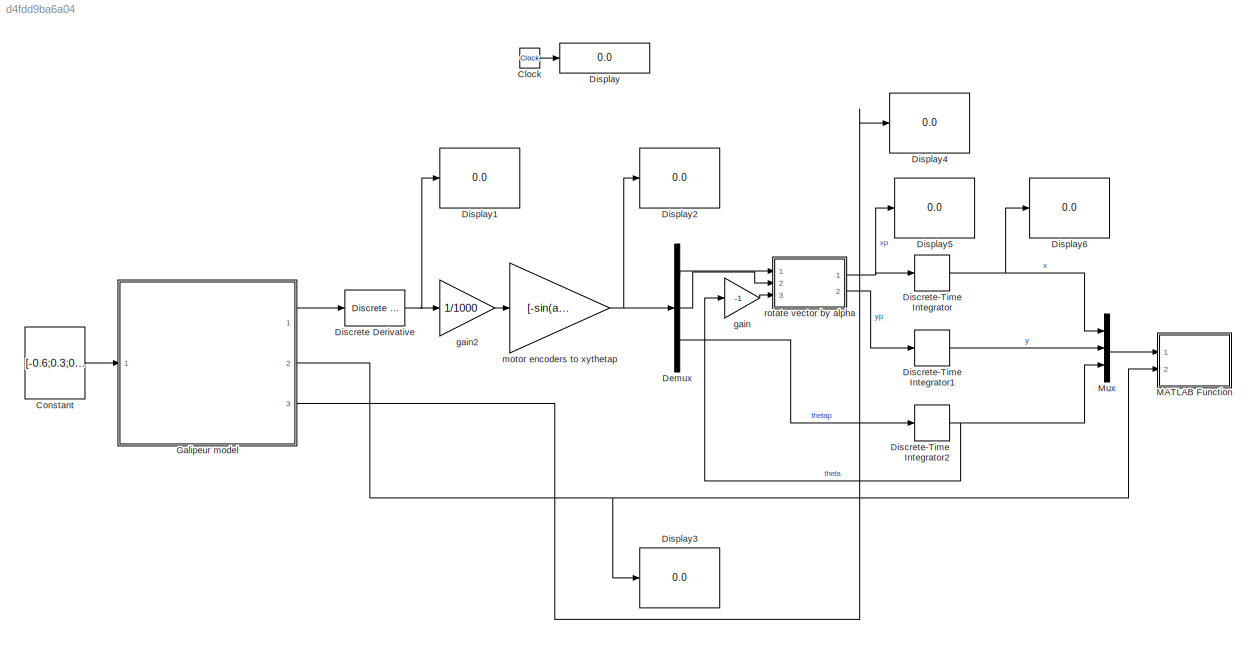
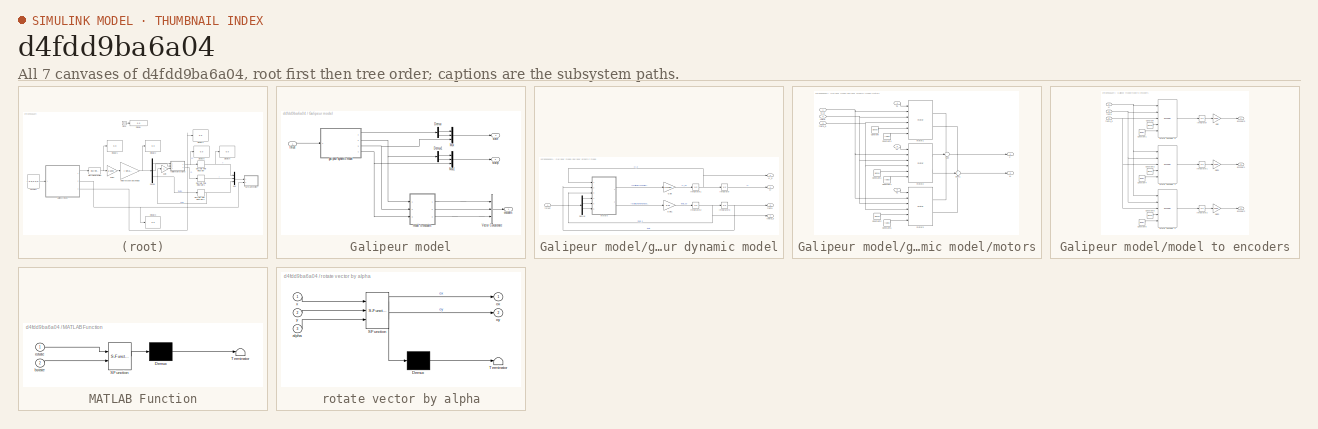
[diagram: thumbnail index - all 7 canvases of the model, root first then tree order]
MODEL slx_d4fdd9ba6a04
KIND model
CONFIG AbsTol = auto
CONFIG EnableMultiTasking = off
CONFIG FixedStep = 0.01
CONFIG MaxStep = 0.05
CONFIG MinStep = auto
CONFIG RelTol = 1e-3
CONFIG SampleTimeConstraint = Unconstrained
CONFIG Solver = FixedStepAuto
CONFIG SolverName = FixedStepAuto
CONFIG StartTime = 0.0
CONFIG StopTime = inf
WORKSPACE source: MAT-file member
WORKSPACE Jz = 3
BLOCK [Clock] Clock
BLOCK [Constant] Constant
  Value = [-0.6;0.3;0.3]
  VectorParams1D = off
BLOCK [Demux] Demux
  DisplayOption = bar
  Outputs = 3
  Ports = [1, 3]
BLOCK [Reference] Discrete Derivative  REF=simulink/Discrete/Discrete Derivative
  Ports = [1, 1]
  SourceBlock = simulink/Discrete/Discrete Derivative
  SourceProductBaseCode = SL
  SourceProductName = Simulink
  SourceType = Discrete Derivative
BLOCK [DiscreteIntegrator] Discrete-Time Integrator
  ICPrevOutput = DiscIntNeverNeededParam
  ICPrevScaledInput = DiscIntNeverNeededParam
  InitialConditionSetting = State (most efficient)
  Ports = [1, 1]
  SampleTime = -1
BLOCK [DiscreteIntegrator] Discrete-Time Integrator1
  ICPrevOutput = DiscIntNeverNeededParam
  ICPrevScaledInput = DiscIntNeverNeededParam
  InitialConditionSetting = State (most efficient)
  Ports = [1, 1]
  SampleTime = -1
BLOCK [DiscreteIntegrator] Discrete-Time Integrator2
  ICPrevOutput = DiscIntNeverNeededParam
  ICPrevScaledInput = DiscIntNeverNeededParam
  InitialConditionSetting = State (most efficient)
  Ports = [1, 1]
  SampleTime = -1
BLOCK [Display] Display
  Decimation = 1
  Ports = [1]
BLOCK [Display] Display1
  Decimation = 1
  Ports = [1]
BLOCK [Display] Display2
  Decimation = 1
  Ports = [1]
BLOCK [Display] Display3
  Decimation = 1
  Ports = [1]
BLOCK [Display] Display4
  Decimation = 1
  Ports = [1]
BLOCK [Display] Display5
  Decimation = 1
  Ports = [1]
BLOCK [Display] Display6
  Decimation = 1
  Ports = [1]
BLOCK [SubSystem] Galipeur model
  Ports = [1, 3]
  RequestExecContextInheritance = off
  Variant = off
BLOCK [Demux] Galipeur model/Demux
  DisplayOption = bar
  Outputs = 2
  Ports = [1, 2]
BLOCK [Demux] Galipeur model/Demux1
  DisplayOption = bar
  Outputs = 2
  Ports = [1, 2]
BLOCK [Mux] Galipeur model/Mux
  DisplayOption = bar
  Inputs = 3
  Ports = [3, 1]
BLOCK [Mux] Galipeur model/Mux1
  DisplayOption = bar
  Inputs = 3
  Ports = [3, 1]
BLOCK [Concatenate] Galipeur model/Vector Concatenate
  NumInputs = 3
  Ports = [3, 1]
BLOCK [Outport] Galipeur model/encoders
  IconDisplay = Port number
BLOCK [SubSystem] Galipeur model/galipeur dynamic model
  Ports = [1, 4]
  RequestExecContextInheritance = off
  Variant = off
BLOCK [Demux] Galipeur model/galipeur dynamic model/Demux
  DisplayOption = bar
  Outputs = 3
  Ports = [1, 3]
BLOCK [Gain] Galipeur model/galipeur dynamic model/Gain
  Gain = 1/mass
  OutDataTypeStr = Inherit: Inherit via internal rule
  ParamDataTypeStr = Inherit: Inherit via internal rule
  SaturateOnIntegerOverflow = off
BLOCK [Gain] Galipeur model/galipeur dynamic model/Gain1
  Gain = 1/Jz
  OutDataTypeStr = Inherit: Inherit via internal rule
  ParamDataTypeStr = Inherit: Inherit via internal rule
  SaturateOnIntegerOverflow = off
BLOCK [Integrator] Galipeur model/galipeur dynamic model/Integrator
  Ports = [1, 1]
BLOCK [Integrator] Galipeur model/galipeur dynamic model/Integrator1
  Ports = [1, 1]
BLOCK [Integrator] Galipeur model/galipeur dynamic model/Integrator2
  Ports = [1, 1]
BLOCK [Integrator] Galipeur model/galipeur dynamic model/Integrator3
  Ports = [1, 1]
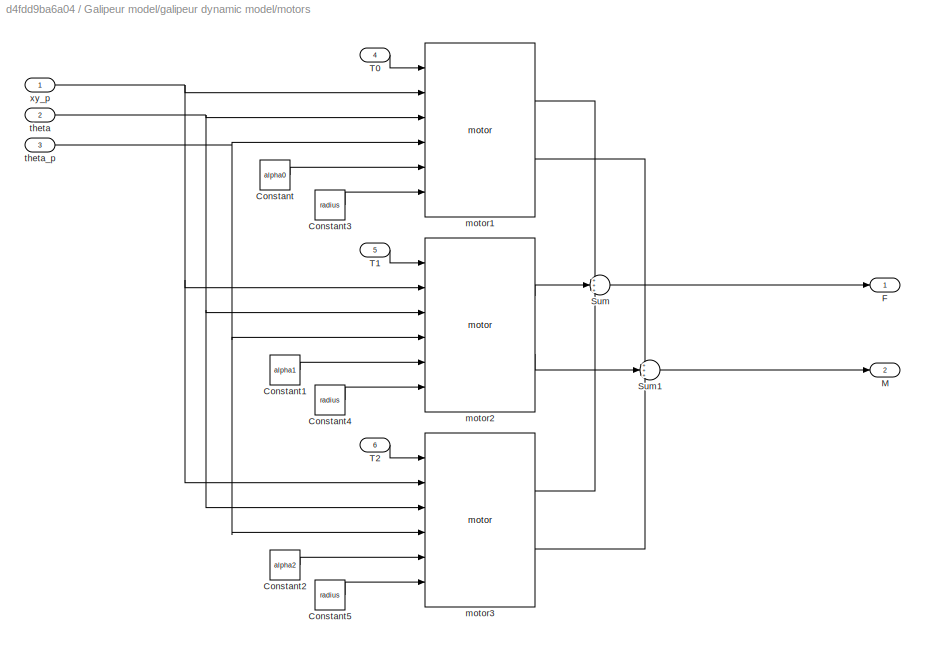
BLOCK [SubSystem] Galipeur model/galipeur dynamic model/motors
  Ports = [6, 2]
  RequestExecContextInheritance = off
  Variant = off
BLOCK [Constant] Galipeur model/galipeur dynamic model/motors/Constant
  Value = alpha0
BLOCK [Constant] Galipeur model/galipeur dynamic model/motors/Constant1
  Value = alpha1
BLOCK [Constant] Galipeur model/galipeur dynamic model/motors/Constant2
  Value = alpha2
BLOCK [Constant] Galipeur model/galipeur dynamic model/motors/Constant3
  Value = radius
BLOCK [Constant] Galipeur model/galipeur dynamic model/motors/Constant4
  Value = radius
BLOCK [Constant] Galipeur model/galipeur dynamic model/motors/Constant5
  Value = radius
BLOCK [Outport] Galipeur model/galipeur dynamic model/motors/F
  IconDisplay = Port number
BLOCK [Outport] Galipeur model/galipeur dynamic model/motors/M
  IconDisplay = Port number
  Port = 2
BLOCK [Sum] Galipeur model/galipeur dynamic model/motors/Sum
  IconShape = round
  InputSameDT = off
  Inputs = +++
  OutDataTypeStr = Inherit: Inherit via internal rule
  Ports = [3, 1]
  SaturateOnIntegerOverflow = off
BLOCK [Sum] Galipeur model/galipeur dynamic model/motors/Sum1
  IconShape = round
  InputSameDT = off
  Inputs = +++
  OutDataTypeStr = Inherit: Inherit via internal rule
  Ports = [3, 1]
  SaturateOnIntegerOverflow = off
BLOCK [Inport] Galipeur model/galipeur dynamic model/motors/T0
  IconDisplay = Port number
  Port = 4
BLOCK [Inport] Galipeur model/galipeur dynamic model/motors/T1
  IconDisplay = Port number
  Port = 5
BLOCK [Inport] Galipeur model/galipeur dynamic model/motors/T2
  IconDisplay = Port number
  Port = 6
BLOCK [Reference] Galipeur model/galipeur dynamic model/motors/motor1  REF=galipeur_lib/motor  (lib defined in slx_35d7a39ee497, slx_afde5d6e38f9)
  Ports = [6, 2]
  SourceBlock = galipeur_lib/motor
  SourceType = SubSystem
BLOCK [Reference] Galipeur model/galipeur dynamic model/motors/motor2  REF=galipeur_lib/motor  (lib defined in slx_35d7a39ee497, slx_afde5d6e38f9)
  Ports = [6, 2]
  SourceBlock = galipeur_lib/motor
  SourceType = SubSystem
BLOCK [Reference] Galipeur model/galipeur dynamic model/motors/motor3  REF=galipeur_lib/motor  (lib defined in slx_35d7a39ee497, slx_afde5d6e38f9)
  Ports = [6, 2]
  SourceBlock = galipeur_lib/motor
  SourceType = SubSystem
BLOCK [Inport] Galipeur model/galipeur dynamic model/motors/theta
  IconDisplay = Port number
  Port = 2
BLOCK [Inport] Galipeur model/galipeur dynamic model/motors/theta_p
  IconDisplay = Port number
  Port = 3
BLOCK [Inport] Galipeur model/galipeur dynamic model/motors/xy_p
  IconDisplay = Port number
BLOCK [Outport] Galipeur model/galipeur dynamic model/theta
  IconDisplay = Port number
  Port = 3
BLOCK [Outport] Galipeur model/galipeur dynamic model/theta_p
  IconDisplay = Port number
  Port = 4
BLOCK [Inport] Galipeur model/galipeur dynamic model/thrust
  IconDisplay = Port number
BLOCK [Outport] Galipeur model/galipeur dynamic model/xy 
  IconDisplay = Port number
BLOCK [Outport] Galipeur model/galipeur dynamic model/xy_p
  IconDisplay = Port number
  Port = 2
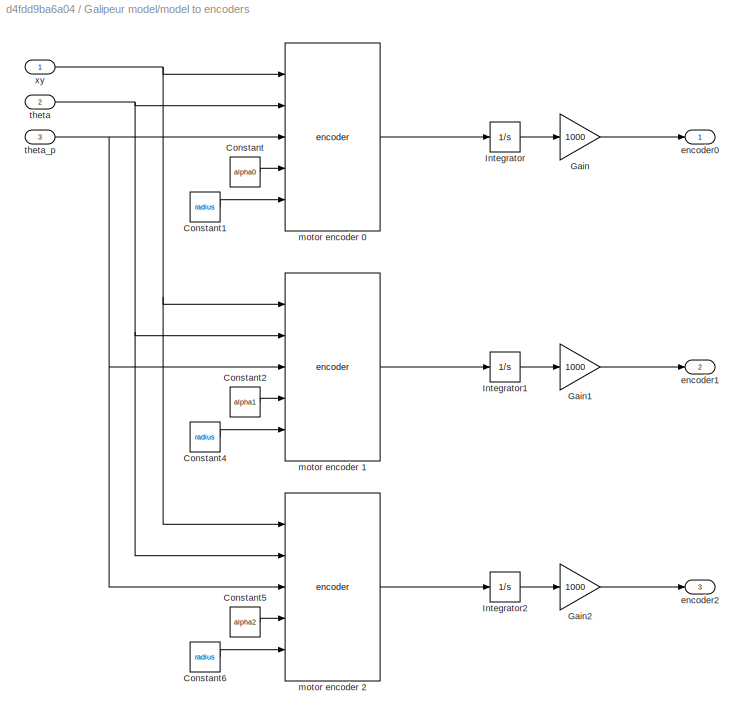
BLOCK [SubSystem] Galipeur model/model to encoders
  Ports = [3, 3]
  RequestExecContextInheritance = off
  Variant = off
BLOCK [Constant] Galipeur model/model to encoders/Constant
  Value = alpha0
BLOCK [Constant] Galipeur model/model to encoders/Constant1
  Value = radius
BLOCK [Constant] Galipeur model/model to encoders/Constant2
  Value = alpha1
BLOCK [Constant] Galipeur model/model to encoders/Constant4
  Value = radius
BLOCK [Constant] Galipeur model/model to encoders/Constant5
  Value = alpha2
BLOCK [Constant] Galipeur model/model to encoders/Constant6
  Value = radius
BLOCK [Gain] Galipeur model/model to encoders/Gain
  Gain = 1000
  OutDataTypeStr = Inherit: Inherit via internal rule
  ParamDataTypeStr = Inherit: Inherit via internal rule
  SaturateOnIntegerOverflow = off
BLOCK [Gain] Galipeur model/model to encoders/Gain1
  Gain = 1000
  OutDataTypeStr = Inherit: Inherit via internal rule
  ParamDataTypeStr = Inherit: Inherit via internal rule
  SaturateOnIntegerOverflow = off
BLOCK [Gain] Galipeur model/model to encoders/Gain2
  Gain = 1000
  OutDataTypeStr = Inherit: Inherit via internal rule
  ParamDataTypeStr = Inherit: Inherit via internal rule
  SaturateOnIntegerOverflow = off
BLOCK [Integrator] Galipeur model/model to encoders/Integrator
  Ports = [1, 1]
BLOCK [Integrator] Galipeur model/model to encoders/Integrator1
  Ports = [1, 1]
BLOCK [Integrator] Galipeur model/model to encoders/Integrator2
  Ports = [1, 1]
BLOCK [Outport] Galipeur model/model to encoders/encoder0
  IconDisplay = Port number
BLOCK [Outport] Galipeur model/model to encoders/encoder1
  IconDisplay = Port number
  Port = 2
BLOCK [Outport] Galipeur model/model to encoders/encoder2
  IconDisplay = Port number
  Port = 3
BLOCK [Reference] Galipeur model/model to encoders/motor encoder 0  REF=galipeur_lib/encoder  (lib defined in slx_35d7a39ee497, slx_afde5d6e38f9)
  Ports = [5, 1]
  SourceBlock = galipeur_lib/encoder
  SourceType = SubSystem
BLOCK [Reference] Galipeur model/model to encoders/motor encoder 1  REF=galipeur_lib/encoder  (lib defined in slx_35d7a39ee497, slx_afde5d6e38f9)
  Ports = [5, 1]
  SourceBlock = galipeur_lib/encoder
  SourceType = SubSystem
BLOCK [Reference] Galipeur model/model to encoders/motor encoder 2  REF=galipeur_lib/encoder  (lib defined in slx_35d7a39ee497, slx_afde5d6e38f9)
  Ports = [5, 1]
  SourceBlock = galipeur_lib/encoder
  SourceType = SubSystem
BLOCK [Inport] Galipeur model/model to encoders/theta
  IconDisplay = Port number
  Port = 2
BLOCK [Inport] Galipeur model/model to encoders/theta_p
  IconDisplay = Port number
  Port = 3
BLOCK [Inport] Galipeur model/model to encoders/xy
  IconDisplay = Port number
BLOCK [Outport] Galipeur model/state
  IconDisplay = Port number
  Port = 2
BLOCK [Outport] Galipeur model/statep
  IconDisplay = Port number
  Port = 3
BLOCK [Inport] Galipeur model/thrust
  IconDisplay = Port number
BLOCK [SubSystem] MATLAB Function
  ErrorFcn = Stateflow.Translate.translate
  PermitHierarchicalResolution = ExplicitOnly
  Ports = [2]
  RequestExecContextInheritance = off
  SFBlockType = MATLAB Function
  TreatAsAtomicUnit = on
  Variant = off
BLOCK [Demux] MATLAB Function/ Demux 
  Outputs = 1
  Ports = [1, 1]
BLOCK [S-Function] MATLAB Function/ SFunction 
  EnableBusSupport = on
  FunctionName = sf_sfun
  PortCounts = [2 1]
  Ports = [2, 1]
  SFcnIsStateOwnerBlock = off
  SFunctionDeploymentMode = off
  Tag = Stateflow S-Function galipeur 3
BLOCK [Terminator] MATLAB Function/ Terminator 
BLOCK [Inport] MATLAB Function/bstate
  IconDisplay = Port number
  Port = 2
BLOCK [Inport] MATLAB Function/rstate
  IconDisplay = Port number
BLOCK [Mux] Mux
  DisplayOption = bar
  Inputs = 3
  Ports = [3, 1]
BLOCK [Gain] gain
  Gain = -1
  OutDataTypeStr = Inherit: Inherit via internal rule
  ParamDataTypeStr = Inherit: Inherit via internal rule
  SaturateOnIntegerOverflow = off
BLOCK [Gain] gain2
  Gain = 1/1000
  OutDataTypeStr = Inherit: Inherit via internal rule
  ParamDataTypeStr = Inherit: Inherit via internal rule
  SaturateOnIntegerOverflow = off
BLOCK [Gain] motor encoders to xythetap
  Gain = [-sin(alpha0)/3 -sin(alpha1)/3 -sin(alpha2)/3; cos(alpha0)/3 cos(alpha1)/3 cos(alpha2)/3; 1/3*radius 1/3*radius 1/3*radius]
  Multiplication = Matrix(K*u) (u vector)
  OutDataTypeStr = Inherit: Inherit via internal rule
  ParamDataTypeStr = Inherit: Inherit via internal rule
  SaturateOnIntegerOverflow = off
BLOCK [SubSystem] rotate vector by alpha
  ErrorFcn = Stateflow.Translate.translate
  PermitHierarchicalResolution = ExplicitOnly
  Ports = [3, 2]
  RequestExecContextInheritance = off
  SFBlockType = MATLAB Function
  TreatAsAtomicUnit = on
  Variant = off
BLOCK [Demux] rotate vector by alpha/ Demux 
  Outputs = 1
  Ports = [1, 1]
BLOCK [S-Function] rotate vector by alpha/ SFunction 
  EnableBusSupport = on
  FunctionName = sf_sfun
  PortCounts = [3 3]
  Ports = [3, 3]
  SFcnIsStateOwnerBlock = off
  SFunctionDeploymentMode = off
  Tag = Stateflow S-Function galipeur 1
BLOCK [Terminator] rotate vector by alpha/ Terminator 
BLOCK [Inport] rotate vector by alpha/alpha
  IconDisplay = Port number
  Port = 3
BLOCK [Outport] rotate vector by alpha/ox
  IconDisplay = Port number
BLOCK [Outport] rotate vector by alpha/oy
  IconDisplay = Port number
  Port = 2
BLOCK [Inport] rotate vector by alpha/x
  IconDisplay = Port number
BLOCK [Inport] rotate vector by alpha/y
  IconDisplay = Port number
  Port = 2
LINE Clock:1 -> Display:1
LINE Constant:1 -> Galipeur model:1
LINE Demux:1 -> rotate vector by alpha:1
LINE Demux:2 -> rotate vector by alpha:2
LINE Demux:3 -> Discrete-Time Integrator2:1
NET Discrete Derivative:1 -> Display1:1, gain2:1
LINE Discrete-Time Integrator1:1 -> Mux:2
NET Discrete-Time Integrator2:1 -> Mux:3, gain:1
NET Discrete-Time Integrator:1 -> Display6:1, Mux:1
LINE Galipeur model/Demux1:1 -> Galipeur model/Mux1:1
LINE Galipeur model/Demux1:2 -> Galipeur model/Mux1:2
LINE Galipeur model/Demux:1 -> Galipeur model/Mux:1
LINE Galipeur model/Demux:2 -> Galipeur model/Mux:2
LINE Galipeur model/Mux1:1 -> Galipeur model/statep:1
LINE Galipeur model/Mux:1 -> Galipeur model/state:1
LINE Galipeur model/Vector Concatenate:1 -> Galipeur model/encoders:1
LINE Galipeur model/galipeur dynamic model/Demux:1 -> Galipeur model/galipeur dynamic model/motors:4
LINE Galipeur model/galipeur dynamic model/Demux:2 -> Galipeur model/galipeur dynamic model/motors:5
LINE Galipeur model/galipeur dynamic model/Demux:3 -> Galipeur model/galipeur dynamic model/motors:6
LINE Galipeur model/galipeur dynamic model/Gain1:1 -> Galipeur model/galipeur dynamic model/Integrator2:1
LINE Galipeur model/galipeur dynamic model/Gain:1 -> Galipeur model/galipeur dynamic model/Integrator1:1
NET Galipeur model/galipeur dynamic model/Integrator1:1 -> Galipeur model/galipeur dynamic model/Integrator:1, Galipeur model/galipeur dynamic model/motors:1, Galipeur model/galipeur dynamic model/xy_p:1
NET Galipeur model/galipeur dynamic model/Integrator2:1 -> Galipeur model/galipeur dynamic model/Integrator3:1, Galipeur model/galipeur dynamic model/motors:3, Galipeur model/galipeur dynamic model/theta_p:1
NET Galipeur model/galipeur dynamic model/Integrator3:1 -> Galipeur model/galipeur dynamic model/motors:2, Galipeur model/galipeur dynamic model/theta:1
LINE Galipeur model/galipeur dynamic model/Integrator:1 -> Galipeur model/galipeur dynamic model/xy :1
LINE Galipeur model/galipeur dynamic model/motors/Constant1:1 -> Galipeur model/galipeur dynamic model/motors/motor2:5
LINE Galipeur model/galipeur dynamic model/motors/Constant2:1 -> Galipeur model/galipeur dynamic model/motors/motor3:5
LINE Galipeur model/galipeur dynamic model/motors/Constant3:1 -> Galipeur model/galipeur dynamic model/motors/motor1:6
LINE Galipeur model/galipeur dynamic model/motors/Constant4:1 -> Galipeur model/galipeur dynamic model/motors/motor2:6
LINE Galipeur model/galipeur dynamic model/motors/Constant5:1 -> Galipeur model/galipeur dynamic model/motors/motor3:6
LINE Galipeur model/galipeur dynamic model/motors/Constant:1 -> Galipeur model/galipeur dynamic model/motors/motor1:5
LINE Galipeur model/galipeur dynamic model/motors/Sum1:1 -> Galipeur model/galipeur dynamic model/motors/M:1
LINE Galipeur model/galipeur dynamic model/motors/Sum:1 -> Galipeur model/galipeur dynamic model/motors/F:1
LINE Galipeur model/galipeur dynamic model/motors/T0:1 -> Galipeur model/galipeur dynamic model/motors/motor1:1
LINE Galipeur model/galipeur dynamic model/motors/T1:1 -> Galipeur model/galipeur dynamic model/motors/motor2:1
LINE Galipeur model/galipeur dynamic model/motors/T2:1 -> Galipeur model/galipeur dynamic model/motors/motor3:1
LINE Galipeur model/galipeur dynamic model/motors/motor1:1 -> Galipeur model/galipeur dynamic model/motors/Sum:1
LINE Galipeur model/galipeur dynamic model/motors/motor1:2 -> Galipeur model/galipeur dynamic model/motors/Sum1:1
LINE Galipeur model/galipeur dynamic model/motors/motor2:1 -> Galipeur model/galipeur dynamic model/motors/Sum:2
LINE Galipeur model/galipeur dynamic model/motors/motor2:2 -> Galipeur model/galipeur dynamic model/motors/Sum1:2
LINE Galipeur model/galipeur dynamic model/motors/motor3:1 -> Galipeur model/galipeur dynamic model/motors/Sum:3
LINE Galipeur model/galipeur dynamic model/motors/motor3:2 -> Galipeur model/galipeur dynamic model/motors/Sum1:3
NET Galipeur model/galipeur dynamic model/motors/theta:1 -> Galipeur model/galipeur dynamic model/motors/motor1:3, Galipeur model/galipeur dynamic model/motors/motor2:3, Galipeur model/galipeur dynamic model/motors/motor3:3
NET Galipeur model/galipeur dynamic model/motors/theta_p:1 -> Galipeur model/galipeur dynamic model/motors/motor1:4, Galipeur model/galipeur dynamic model/motors/motor2:4, Galipeur model/galipeur dynamic model/motors/motor3:4
NET Galipeur model/galipeur dynamic model/motors/xy_p:1 -> Galipeur model/galipeur dynamic model/motors/motor1:2, Galipeur model/galipeur dynamic model/motors/motor2:2, Galipeur model/galipeur dynamic model/motors/motor3:2
LINE Galipeur model/galipeur dynamic model/motors:1 -> Galipeur model/galipeur dynamic model/Gain:1
LINE Galipeur model/galipeur dynamic model/motors:2 -> Galipeur model/galipeur dynamic model/Gain1:1
LINE Galipeur model/galipeur dynamic model/thrust:1 -> Galipeur model/galipeur dynamic model/Demux:1
LINE Galipeur model/galipeur dynamic model:1 -> Galipeur model/Demux:1
NET Galipeur model/galipeur dynamic model:2 -> Galipeur model/Demux1:1, Galipeur model/model to encoders:1
NET Galipeur model/galipeur dynamic model:3 -> Galipeur model/Mux:3, Galipeur model/model to encoders:2
NET Galipeur model/galipeur dynamic model:4 -> Galipeur model/Mux1:3, Galipeur model/model to encoders:3
LINE Galipeur model/model to encoders/Constant1:1 -> Galipeur model/model to encoders/motor encoder 0:5
LINE Galipeur model/model to encoders/Constant2:1 -> Galipeur model/model to encoders/motor encoder 1:4
LINE Galipeur model/model to encoders/Constant4:1 -> Galipeur model/model to encoders/motor encoder 1:5
LINE Galipeur model/model to encoders/Constant5:1 -> Galipeur model/model to encoders/motor encoder 2:4
LINE Galipeur model/model to encoders/Constant6:1 -> Galipeur model/model to encoders/motor encoder 2:5
LINE Galipeur model/model to encoders/Constant:1 -> Galipeur model/model to encoders/motor encoder 0:4
LINE Galipeur model/model to encoders/Gain1:1 -> Galipeur model/model to encoders/encoder1:1
LINE Galipeur model/model to encoders/Gain2:1 -> Galipeur model/model to encoders/encoder2:1
LINE Galipeur model/model to encoders/Gain:1 -> Galipeur model/model to encoders/encoder0:1
LINE Galipeur model/model to encoders/Integrator1:1 -> Galipeur model/model to encoders/Gain1:1
LINE Galipeur model/model to encoders/Integrator2:1 -> Galipeur model/model to encoders/Gain2:1
LINE Galipeur model/model to encoders/Integrator:1 -> Galipeur model/model to encoders/Gain:1
LINE Galipeur model/model to encoders/motor encoder 0:1 -> Galipeur model/model to encoders/Integrator:1
LINE Galipeur model/model to encoders/motor encoder 1:1 -> Galipeur model/model to encoders/Integrator1:1
LINE Galipeur model/model to encoders/motor encoder 2:1 -> Galipeur model/model to encoders/Integrator2:1
NET Galipeur model/model to encoders/theta:1 -> Galipeur model/model to encoders/motor encoder 0:2, Galipeur model/model to encoders/motor encoder 1:2, Galipeur model/model to encoders/motor encoder 2:2
NET Galipeur model/model to encoders/theta_p:1 -> Galipeur model/model to encoders/motor encoder 0:3, Galipeur model/model to encoders/motor encoder 1:3, Galipeur model/model to encoders/motor encoder 2:3
NET Galipeur model/model to encoders/xy:1 -> Galipeur model/model to encoders/motor encoder 0:1, Galipeur model/model to encoders/motor encoder 1:1, Galipeur model/model to encoders/motor encoder 2:1
LINE Galipeur model/model to encoders:1 -> Galipeur model/Vector Concatenate:1
LINE Galipeur model/model to encoders:2 -> Galipeur model/Vector Concatenate:2
LINE Galipeur model/model to encoders:3 -> Galipeur model/Vector Concatenate:3
LINE Galipeur model/thrust:1 -> Galipeur model/galipeur dynamic model:1
LINE Galipeur model:1 -> Discrete Derivative:1
NET Galipeur model:2 -> Display3:1, MATLAB Function:2
LINE Galipeur model:3 -> Display4:1
LINE Mux:1 -> MATLAB Function:1
LINE gain2:1 -> motor encoders to xythetap:1
LINE gain:1 -> rotate vector by alpha:3
NET motor encoders to xythetap:1 -> Demux:1, Display2:1
NET rotate vector by alpha:1 -> Discrete-Time Integrator:1, Display5:1
LINE rotate vector by alpha:2 -> Discrete-Time Integrator1:1
note: NET lines group one-source signal fan-out (src -> all destinations, sorted); 1:1 wires keep LINE
CHART rotate vector by alpha states=1 transitions=1
  STATE_LABEL 'eML_blk_kernel()'
  STATE_LABEL 'SCRIPT:\nfunction [ox,oy]= fcn(x,y,alpha)\n% rotate (x,y) vector by alpha\n\nin = [x;y];\nR = [cos(alpha) -sin(alpha);\n     sin(alpha) cos(alpha)];\nout = R*in;\nox = out(1);\noy = out(2);\n'
CHART MATLAB Function states=1 transitions=1
  STATE_LABEL 'eML_blk_kernel()'
  STATE_LABEL "SCRIPT:\nfunction fcn(rstate,bstate)\n% plot robot\nstate=rstate;\nxy=[state(1);state(2)];\ntheta=[state(3)];\na0=pi/2;\na1=pi/2 + 2*pi/3;\na2=pi/2 + 4*pi/3;\nR=0.3;\np0 = xy + R*[cos(a0+theta); sin(a0+theta)];\np1 = xy + R*[cos(a1+theta); sin(a1+theta)];\np2 = xy + R*[cos(a2+theta); sin(a2+theta)];\n\n\nhold off\nplot([p0(1) p1(1) p2(1) p0(1)],[p0(2) p1(2) p2(2) p0(2)],'r-')\nxlim([-3 3])\nylim([-3 3])\n\nstate=bsta...<+333ch>"
